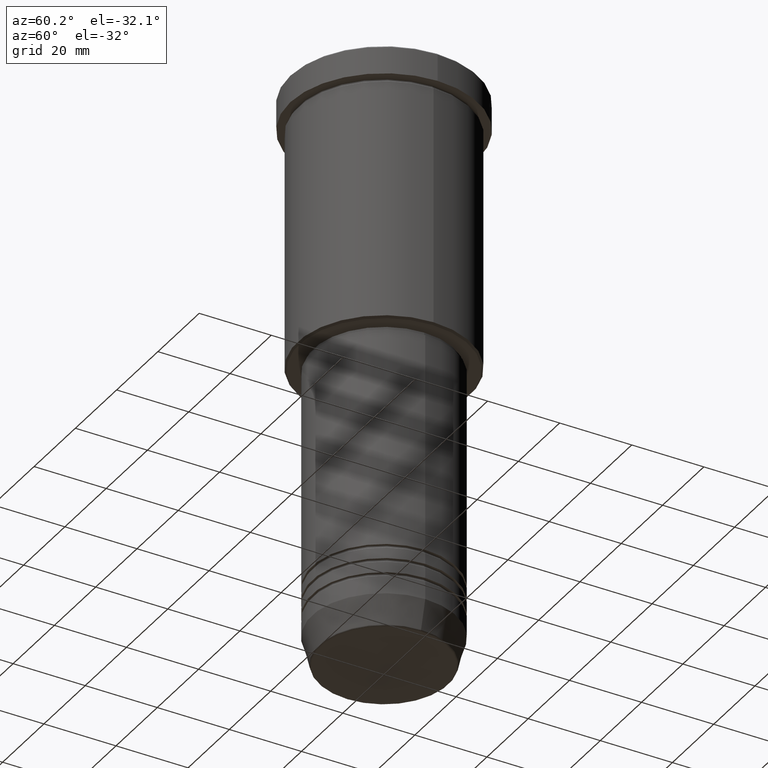
[diagram: clean part render]
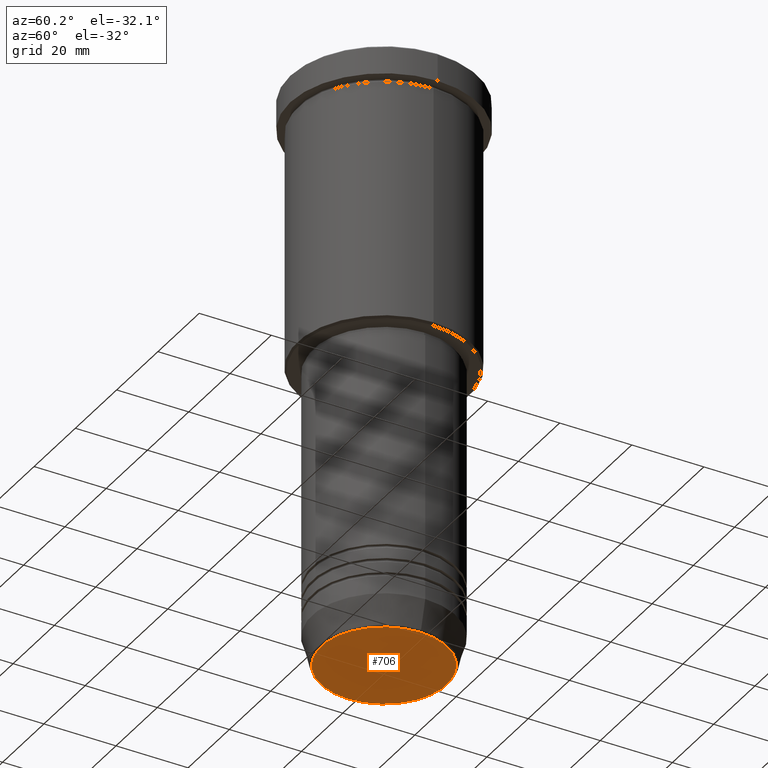
[diagram: same view with one face highlighted and labeled with its STEP entity id]
A machine part, auxiliary view. The second image highlights one B-rep face of the part: STEP entity #706.
In plain terms, the highlighted planar face has unit normal (0, -0, 1).
Its self-contained STEP definition (entity closure, byte-faithful):
#11 = CARTESIAN_POINT ( 'NONE',  ( 0.000000000000000000, 0.000000000000000000, -160.0000000000000284 ) ) ;
#50 = EDGE_LOOP ( 'NONE', ( #1177, #934 ) ) ;
#55 = CIRCLE ( 'NONE', #1131, 17.47274296656154036 ) ;
#99 = DIRECTION ( 'NONE',  ( 0.000000000000000000, 0.000000000000000000, -1.000000000000000000 ) ) ;
#128 = VERTEX_POINT ( 'NONE', #826 ) ;
#156 = CIRCLE ( 'NONE', #559, 17.47274296656154036 ) ;
#262 = PLANE ( 'NONE',  #656 ) ;
#382 = DIRECTION ( 'NONE',  ( 0.000000000000000000, 0.000000000000000000, -1.000000000000000000 ) ) ;
#471 = CARTESIAN_POINT ( 'NONE',  ( 0.000000000000000000, 0.000000000000000000, -160.0000000000000284 ) ) ;
#548 = FACE_OUTER_BOUND ( 'NONE', #50, .T. ) ;
#559 = AXIS2_PLACEMENT_3D ( 'NONE', #471, #99, #844 ) ;
#589 = EDGE_CURVE ( 'NONE', #1139, #128, #156, .T. ) ;
#607 = EDGE_CURVE ( 'NONE', #128, #1139, #55, .T. ) ;
#617 = DIRECTION ( 'NONE',  ( 1.000000000000000000, 0.000000000000000000, 0.000000000000000000 ) ) ;
#656 = AXIS2_PLACEMENT_3D ( 'NONE', #1180, #1083, #617 ) ;
#706 = ADVANCED_FACE ( 'NONE', ( #548 ), #262, .F. ) ;
#824 = DIRECTION ( 'NONE',  ( 1.000000000000000000, 0.000000000000000000, 0.000000000000000000 ) ) ;
#826 = CARTESIAN_POINT ( 'NONE',  ( -17.47274296656154036, 2.169366823916868503E-15, -160.0000000000000284 ) ) ;
#844 = DIRECTION ( 'NONE',  ( 1.000000000000000000, 0.000000000000000000, 0.000000000000000000 ) ) ;
#934 = ORIENTED_EDGE ( 'NONE', *, *, #607, .T. ) ;
#1083 = DIRECTION ( 'NONE',  ( 0.000000000000000000, -0.000000000000000000, 1.000000000000000000 ) ) ;
#1097 = CARTESIAN_POINT ( 'NONE',  ( 17.47274296656154036, 0.000000000000000000, -160.0000000000000284 ) ) ;
#1131 = AXIS2_PLACEMENT_3D ( 'NONE', #11, #382, #824 ) ;
#1139 = VERTEX_POINT ( 'NONE', #1097 ) ;
#1177 = ORIENTED_EDGE ( 'NONE', *, *, #589, .T. ) ;
#1180 = CARTESIAN_POINT ( 'NONE',  ( 0.000000000000000000, 0.000000000000000000, -160.0000000000000284 ) ) ;